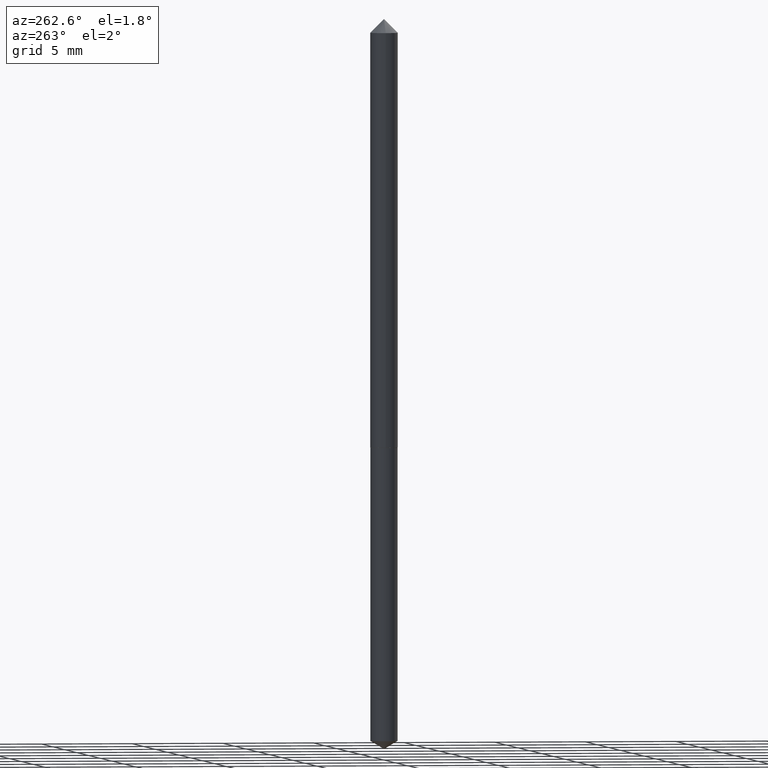
[diagram: clean part render]
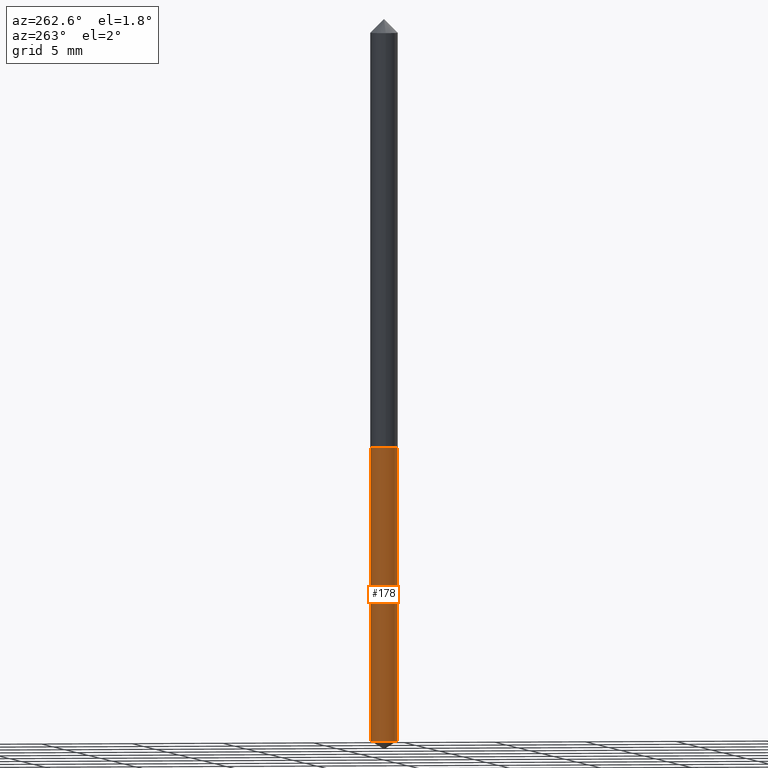
[diagram: same view with one face highlighted and labeled with its STEP entity id]
A machine part, auxiliary view. The second image highlights one B-rep face of the part: STEP entity #178.
In plain terms, the highlighted cylindrical surface (edge-blend (fillet) strip) has radius 0.7506 mm, axis along (-0, 0, 1).
Its self-contained STEP definition (entity closure, byte-faithful):
#12 = DIRECTION ( 'NONE',  ( -2.445092826674047099E-29, 3.492019762902450738E-15, 1.000000000000000000 ) ) ;
#18 = CIRCLE ( 'NONE', #246, 0.02954999999999999988 ) ;
#19 = CARTESIAN_POINT ( 'NONE',  ( 2.099653784171477406E-16, 0.02954999999999676982, -0.9252000000000002444 ) ) ;
#34 = VERTEX_POINT ( 'NONE', #351 ) ;
#53 = ORIENTED_EDGE ( 'NONE', *, *, #172, .T. ) ;
#55 = VERTEX_POINT ( 'NONE', #72 ) ;
#59 = ORIENTED_EDGE ( 'NONE', *, *, #128, .F. ) ;
#61 = CIRCLE ( 'NONE', #71, 0.02954999999999999988 ) ;
#65 = DIRECTION ( 'NONE',  ( -6.982962677686265922E-15, -1.000000000000000000, 4.622416232934455843E-15 ) ) ;
#68 = DIRECTION ( 'NONE',  ( -2.445092826674046819E-29, 3.492019762902451132E-15, 1.000000000000000000 ) ) ;
#71 = AXIS2_PLACEMENT_3D ( 'NONE', #345, #12, #330 ) ;
#72 = CARTESIAN_POINT ( 'NONE',  ( -2.063465471256065363E-16, -0.02955000000000323340, -0.9252000000000000224 ) ) ;
#77 = DIRECTION ( 'NONE',  ( -6.982962677686265922E-15, -1.000000000000000000, 4.622416232934455843E-15 ) ) ;
#99 = LINE ( 'NONE', #202, #314 ) ;
#104 = CARTESIAN_POINT ( 'NONE',  ( -2.063465471255910549E-16, -0.02955000000000543303, -1.557044568707735666 ) ) ;
#109 = DIRECTION ( 'NONE',  ( -2.445092826674047099E-29, 3.492019762902450738E-15, 1.000000000000000000 ) ) ;
#117 = VERTEX_POINT ( 'NONE', #19 ) ;
#128 = EDGE_CURVE ( 'NONE', #34, #117, #99, .T. ) ;
#151 = ORIENTED_EDGE ( 'NONE', *, *, #281, .F. ) ;
#166 = VECTOR ( 'NONE', #304, 39.37007874015748143 ) ;
#170 = VERTEX_POINT ( 'NONE', #104 ) ;
#172 = EDGE_CURVE ( 'NONE', #34, #170, #61, .T. ) ;
#178 = ADVANCED_FACE ( 'NONE', ( #247 ), #360, .T. ) ;
#202 = CARTESIAN_POINT ( 'NONE',  ( 2.099653784171322099E-16, 0.02954999999999676982, -0.9252000000000002444 ) ) ;
#211 = CARTESIAN_POINT ( 'NONE',  ( 2.262547739482488697E-29, -3.230318534697678788E-15, -0.9252000000000001334 ) ) ;
#212 = CARTESIAN_POINT ( 'NONE',  ( 2.262547739482488697E-29, -3.230318534697678788E-15, -0.9252000000000001334 ) ) ;
#237 = EDGE_CURVE ( 'NONE', #170, #55, #361, .T. ) ;
#246 = AXIS2_PLACEMENT_3D ( 'NONE', #211, #109, #77 ) ;
#247 = FACE_OUTER_BOUND ( 'NONE', #287, .T. ) ;
#256 = ORIENTED_EDGE ( 'NONE', *, *, #237, .T. ) ;
#261 = DIRECTION ( 'NONE',  ( -2.445092826674047099E-29, 3.492019762902450738E-15, 1.000000000000000000 ) ) ;
#281 = EDGE_CURVE ( 'NONE', #117, #55, #18, .T. ) ;
#287 = EDGE_LOOP ( 'NONE', ( #59, #53, #256, #151 ) ) ;
#299 = CARTESIAN_POINT ( 'NONE',  ( -2.063465471256065363E-16, -0.02955000000000323340, -0.9252000000000000224 ) ) ;
#304 = DIRECTION ( 'NONE',  ( -2.445092826674046819E-29, 3.492019762902451132E-15, 1.000000000000000000 ) ) ;
#314 = VECTOR ( 'NONE', #68, 39.37007874015748143 ) ;
#330 = DIRECTION ( 'NONE',  ( -6.982962677686265922E-15, -1.000000000000000000, 0.000000000000000000 ) ) ;
#344 = AXIS2_PLACEMENT_3D ( 'NONE', #212, #261, #65 ) ;
#345 = CARTESIAN_POINT ( 'NONE',  ( 3.807466362002729867E-29, -5.436732255707665702E-15, -1.557044568707735666 ) ) ;
#351 = CARTESIAN_POINT ( 'NONE',  ( 2.099653784171475926E-16, 0.02954999999999455285, -1.557044568707735666 ) ) ;
#360 = CYLINDRICAL_SURFACE ( 'NONE', #344, 0.02954999999999999988 ) ;
#361 = LINE ( 'NONE', #299, #166 ) ;